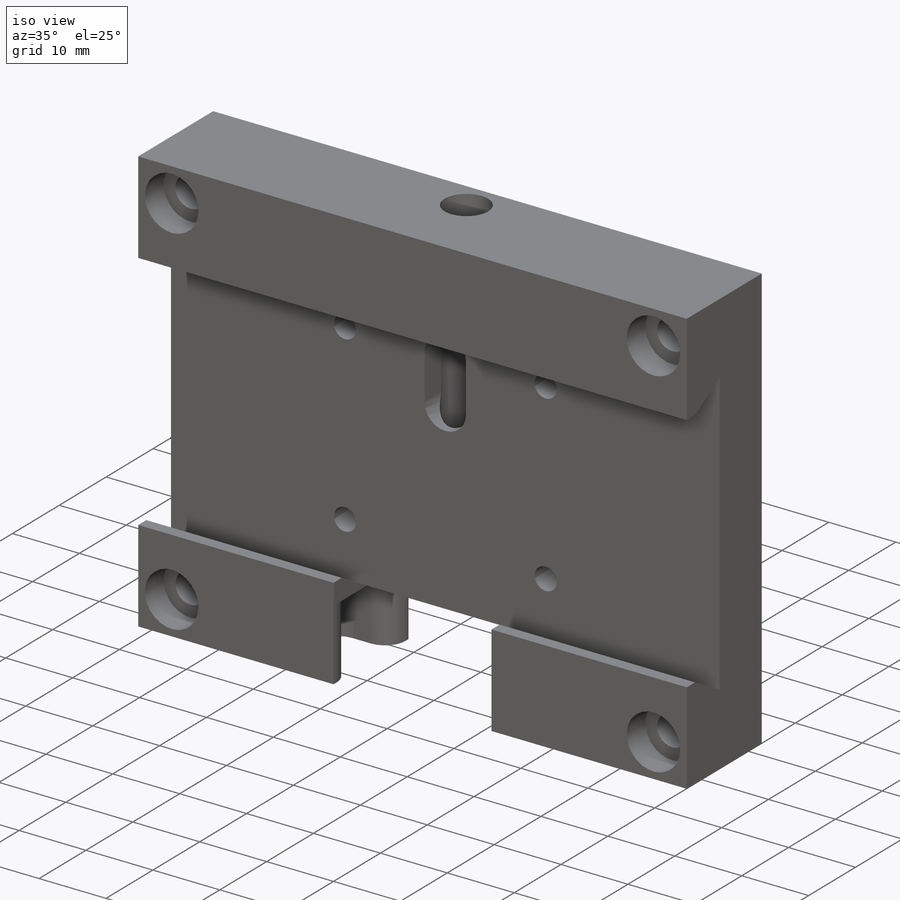
[diagram: iso view]
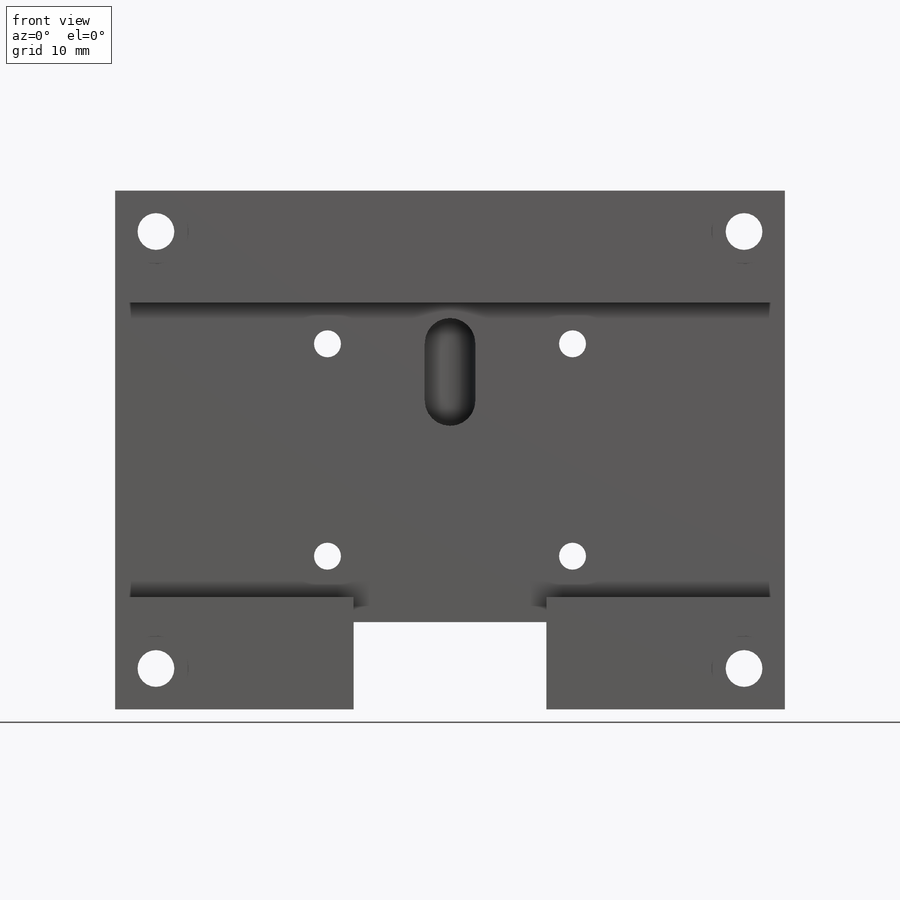
[diagram: front view]
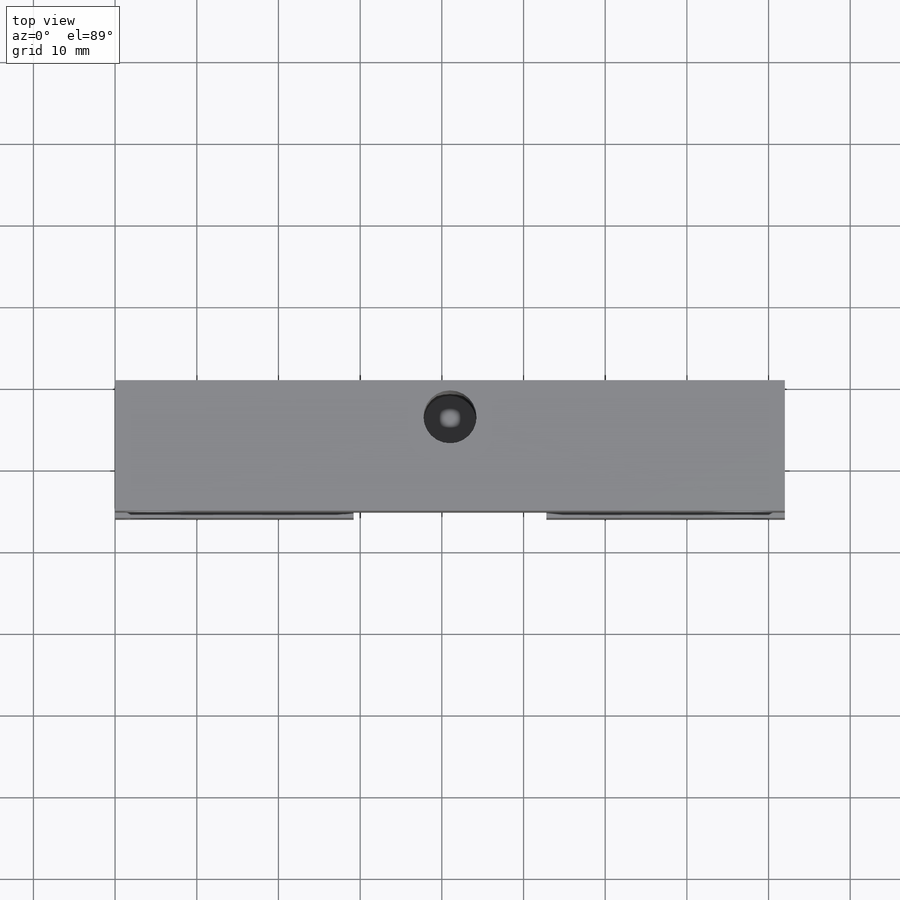
[diagram: top view]
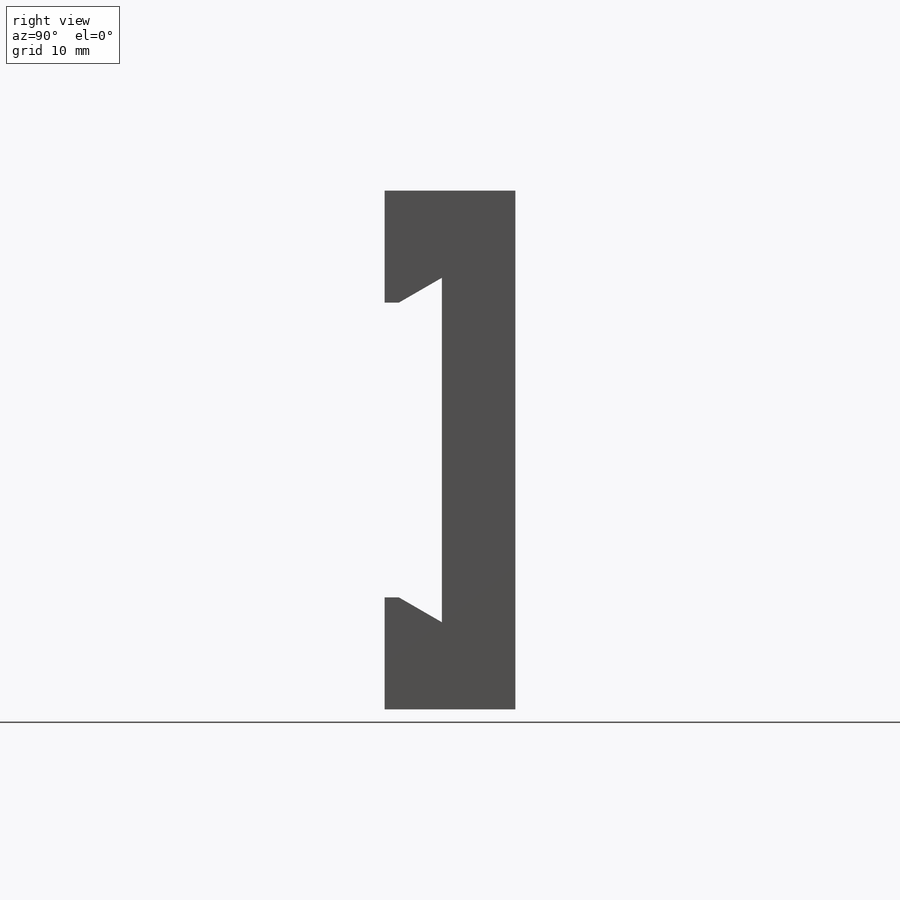
[diagram: right view]
SOLIDWORKS PART (.sldprt)
format: sldprt  version: not decoded by parser v0  size: 603,136 bytes
history: native  units: mm
features: sketch x16, cut_extrude x7, fillet x5, plane x4, hole x3, material x1, extrude x1, thread x1, chamfer x1 (+8 scaffold rows collapsed)
feature tree (47):
  scaffold x8  (default folders/planes/origin — collapsed)
  material  "Сплав 2024"
  plane  "Спереди"
  plane  "Сверху"
  plane  "Справа"
  sketch  "Эскиз1"  dims[c1.D1=~45.059989mm c1.D2=~61.728048mm c2.D1=63.5mm c2.D2=82.0mm]
  extrude  "Бобышка-Вытянуть1"  Depth=16mm
  sketch  "Эскиз2"  dims[c1.D1=~39.784709mm c1.D2=~15.067506mm c2.D1=32.0mm c2.D2=30.0mm c3.D2=60.0deg c3.D3=~19.970042mm c4.D3=60.0deg c4.D4=7.0mm c4.D1=42.16mm]
  cut_extrude  "Вырез-Вытянуть1"  [1 undecoded]
  plane  "Плоскость1"  Offset=5mm
  sketch  "Эскиз11"  dims[c1.D1=7.0mm c1.D2=7.0mm c1.D3=15.0mm c1.D4=15.0mm c1.D5=~15.833759mm c1.D6=~32.819806mm c2.D5=45.0mm c2.D6=40.0mm c2.D3=15.0mm c2.D1=25.0mm c2.D2=25.0mm c3.D3=5.0mm c3.D4=5.0mm c3.D1=5.0mm c3.D2=5.0mm]
  sketch  "Эскиз15"  dims[c1.D1=~9.30043mm c1.D2=~9.300455mm c2.D1=23.6mm]
  cut_extrude  "Вырез-Вытянуть4"  [1 undecoded]
  sketch  "Эскиз16"  dims[D1=~9.713782mm D2=~13.227303mm]
  cut_extrude  "Вырез-Вытянуть5"  [1 undecoded]
  sketch  "Эскиз17"  dims[D1=8.0mm D2=7.5mm D3=5.0mm]
  cut_extrude  "Вырез-Вытянуть6"  Depth=8mm
  hole  "Отверстие обработанное метчиком M4x0.72"  [1 undecoded]
  sketch  "Эскиз19"
  sketch  "Эскиз18"  dims[hole-wizard template sketch: 50 standard entries collapsed; hole parameters above]
  thread  "Отверстие резьбы9"  Diameter=8mm  [1 undecoded]
  sketch  "Эскиз25"  dims[c1.D1=3.1mm c1.D2=3.0mm c2.D1=~8.905397mm c2.D2=4.0mm c2.D3=7.0mm]
  cut_extrude  "Вырез-Вытянуть7"  Depth=4mm
  sketch  "Эскиз26"  dims[c1.D2=6.5mm c1.D1=9.0mm c2.D2=~0.717341mm c2.D3=4.5mm]
  cut_extrude  "Вырез-Вытянуть8"  Depth=38mm
  hole  "Цековка для винта с внутренним шестигранником M41"  [1 undecoded]
  sketch  "Эскиз29"
  sketch  "Эскиз28"  dims[hole-wizard template sketch: 42 standard entries collapsed; hole parameters kept: c12.Глубина сквозного отверстия=16.0mm c12.Диаметр цековки=8.0mm c12.Глубина цековки=4.0mm]
  chamfer  "Фаска2"  Distance=1mm Angle=90deg
  sketch  "Эскиз32"  dims[D1=0.2mm]
  cut_extrude  "Вырез-Вытянуть12"  Depth=10.6mm
  fillet  "Скругление1"  Radius=3mm
  sketch  "Эскиз33"  dims[D1=30.0mm D2=26.0mm]
  hole  "Отверстие обработанное метчиком M4x0.73"  [1 undecoded]
  sketch  "Эскиз35"
  sketch  "Эскиз34"  dims[hole-wizard template sketch: 60 standard entries collapsed; hole parameters kept: c18.Глубина проходного сверла=16.0mm]
  fillet  "Отверстие резьбы18"  Radius=4mm
  fillet  "Отверстие резьбы19"  Radius=4mm
  fillet  "Отверстие резьбы20"  Radius=4mm
  fillet  "Отверстие резьбы21"  Radius=4mm
decode coverage: 25 of 34 modeling features carry decoded parameters
note: ~ marks probable driven/reference dimensions
note: 7 parameter values undecoded
summary: no parameter record found for 6 features
note: suppression state not decoded; provenance and decode notes live in map.json
